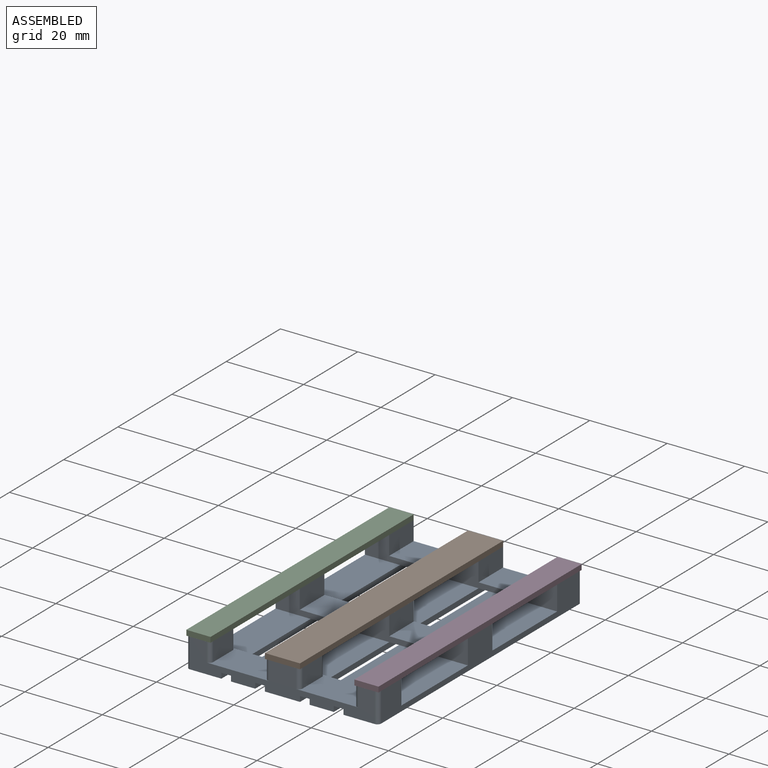
[diagram: assembled view]
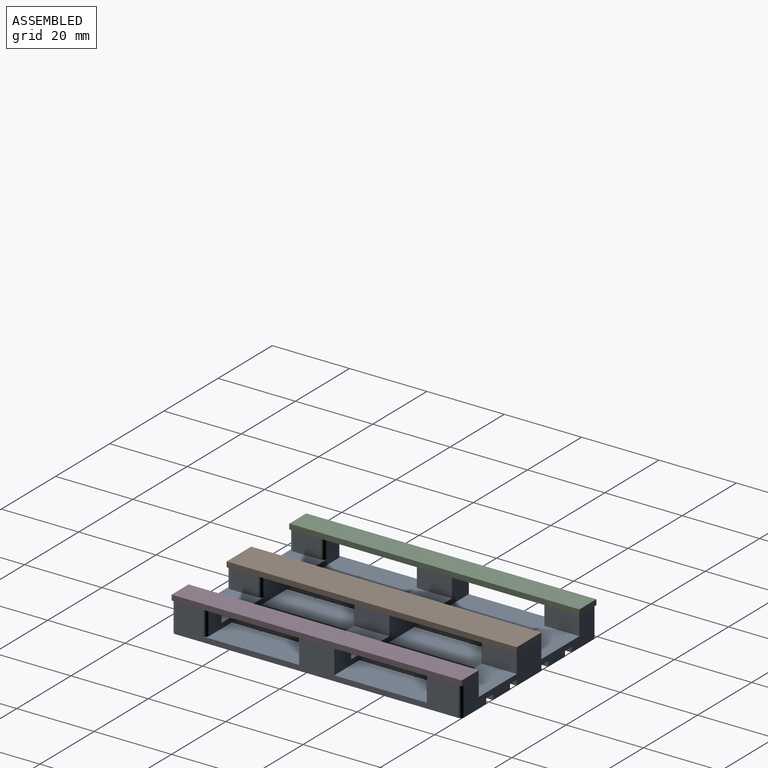
[diagram: assembled view, second angle]
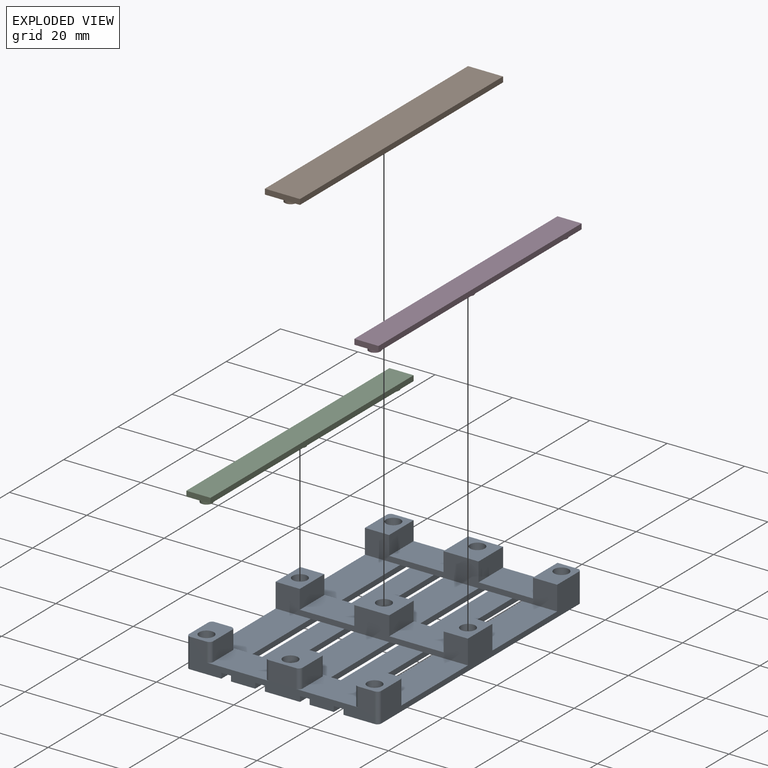
[diagram: exploded view]
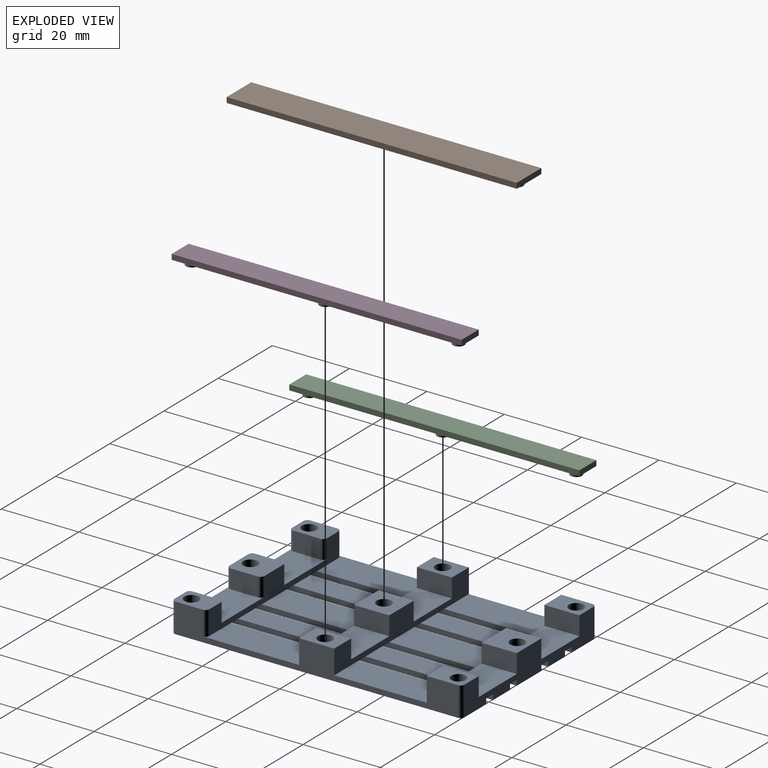
[diagram: exploded view, second angle]
ASSEMBLY  parts=4 mates=3
PART A: 117 faces, bbox 49.7x75x7.6 mm
  f0: plane 23.91x9.06mm, normal (0,0,1), area 216.6mm2, adj f3,f5,f45,f59
  f1: plane 23.91x9.06mm, normal (0,0,1), area 216.6mm2, adj f3,f5,f57,f70
  f2: plane 9.06x1.38mm, normal (0,-1,0), area 12.5mm2, adj f3,f5,f6,f72
  f3: plane 75x1.38mm, normal (1,0,0), area 103.1mm2, adj f0,f1,f2,f4,f6,f7,f8,f9
  f4: plane 47.69x7.63mm, normal (0,1,0), area 212.8mm2, adj f3,f5,f6,f7,f13,f14,f15,f16
  f5: plane 75x1.38mm, normal (-1,0,0), area 103.1mm2, adj f0,f1,f2,f4,f6,f16,f17,f18
  f6: plane 75x9.06mm, normal (0,0,-1), area 679.7mm2, adj f2,f3,f4,f5
  f7: plane 9.06x2.5mm, normal (0,0,-1), area 22.7mm2, adj f3,f4,f32,f45
  f8: plane 9.06x2.5mm, normal (0,0,-1), area 22.7mm2, adj f3,f32,f57,f59
  f9: plane 9.06x2.5mm, normal (0,0,-1), area 22.7mm2, adj f3,f32,f70,f72
  f10: plane 23.91x6.25mm, normal (0,0,1), area 149.4mm2, adj f13,f14,f45,f59
  f11: plane 23.91x6.25mm, normal (0,0,1), area 149.4mm2, adj f13,f14,f57,f70
  f12: plane 6.25x1.38mm, normal (0,-1,0), area 8.6mm2, adj f13,f14,f15,f72
  f13: plane 75x1.38mm, normal (1,0,0), area 103.1mm2, adj f4,f10,f11,f12,f15,f16,f17,f18
  f14: plane 75x1.38mm, normal (-1,0,0), area 103.1mm2, adj f4,f10,f11,f12,f15,f25,f26,f27
  f15: plane 75x6.25mm, normal (0,0,-1), area 468.7mm2, adj f4,f12,f13,f14
  f16: plane 9.06x2.5mm, normal (0,0,-1), area 22.7mm2, adj f4,f5,f13,f45
  f17: plane 9.06x2.5mm, normal (0,0,-1), area 22.7mm2, adj f5,f13,f57,f59
  f18: plane 9.06x2.5mm, normal (0,0,-1), area 22.7mm2, adj f5,f13,f70,f72
  f19: plane 23.91x9.06mm, normal (0,0,1), area 216.7mm2, adj f22,f23,f45,f59
  f20: plane 24.91x9.06mm, normal (0,0,1), area 216.9mm2, adj f22,f23,f57,f70,f111
  f21: plane 8.06x1.38mm, normal (0,-1,0), area 11.1mm2, adj f22,f24,f72,f102
  f22: plane 75x1.38mm, normal (1,0,0), area 103.1mm2, adj f4,f19,f20,f21,f24,f25,f26,f27
  f23: plane 73x1.38mm, normal (-1,0,0), area 100.4mm2, adj f19,f20,f24,f47,f60,f71,f102,f116
  f24: plane 75x9.06mm, normal (0,0,-1), area 679.3mm2, adj f4,f21,f22,f23,f102,f116
  f25: plane 9.06x2.5mm, normal (0,0,-1), area 22.7mm2, adj f4,f14,f22,f45
  f26: plane 9.06x2.5mm, normal (0,0,-1), area 22.7mm2, adj f14,f22,f57,f59
  f27: plane 9.06x2.5mm, normal (0,0,-1), area 22.7mm2, adj f14,f22,f70,f72
  f28: plane 23.91x6.25mm, normal (0,0,1), area 149.4mm2, adj f31,f32,f45,f59
  f29: plane 23.91x6.25mm, normal (0,0,1), area 149.4mm2, adj f31,f32,f57,f70
  f30: plane 6.25x1.38mm, normal (0,-1,0), area 8.6mm2, adj f31,f32,f33,f72
  f31: plane 75x1.38mm, normal (1,0,0), area 103.1mm2, adj f4,f28,f29,f30,f33,f34,f35,f36
  f32: plane 75x1.38mm, normal (-1,0,0), area 103.1mm2, adj f4,f7,f8,f9,f28,f29,f30,f33
  f33: plane 75x6.25mm, normal (0,0,-1), area 468.7mm2, adj f4,f30,f31,f32
  f34: plane 9.06x2.5mm, normal (0,0,-1), area 22.7mm2, adj f4,f31,f41,f45
  f35: plane 9.06x2.5mm, normal (0,0,-1), area 22.7mm2, adj f31,f41,f57,f59
  f36: plane 9.06x2.5mm, normal (0,0,-1), area 22.7mm2, adj f31,f41,f70,f72
  f37: plane 24.91x9.06mm, normal (0,0,1), area 216.9mm2, adj f40,f41,f57,f70,f112
  f38: plane 23.91x9.06mm, normal (0,0,1), area 216.7mm2, adj f40,f41,f45,f59
  f39: plane 8.06x1.38mm, normal (0,-1,0), area 11.1mm2, adj f41,f42,f72,f100
  f40: plane 73x1.38mm, normal (1,0,0), area 100.4mm2, adj f37,f38,f42,f46,f58,f73,f100,f114
  f41: plane 75x1.38mm, normal (-1,0,0), area 103.1mm2, adj f4,f34,f35,f36,f37,f38,f39,f42
  f42: plane 75x9.06mm, normal (0,0,-1), area 679.3mm2, adj f4,f39,f40,f41,f100,f114
  f43: plane 14.06x9.06mm, normal (0,0,1), area 127.4mm2, adj f4,f45,f50,f53
  f44: plane 14.06x9.06mm, normal (0,0,1), area 127.4mm2, adj f4,f45,f48,f52
  f45: plane 49.69x6.25mm, normal (0,-1,0), area 173.4mm2, adj f0,f7,f10,f16,f19,f25,f28,f34
  f46: plane 8.06x6.25mm, normal (1,0,0), area 50.4mm2, adj f40,f45,f51,f113
  f47: plane 8.06x6.25mm, normal (-1,0,0), area 50.4mm2, adj f23,f45,f49,f115
  f48: plane 9.06x4.88mm, normal (1,0,0), area 44.2mm2, adj f4,f44,f45,f49
  f49: plane 9.06x6.25mm, normal (0,0,1), area 45.1mm2, adj f4,f45,f47,f48,f97,f115
  f50: plane 9.06x4.88mm, normal (-1,0,0), area 44.2mm2, adj f4,f43,f45,f51
  f51: plane 9.06x6.25mm, normal (0,0,1), area 45.1mm2, adj f4,f45,f46,f50,f95,f113
  f52: plane 9.06x4.88mm, normal (-1,0,0), area 44.2mm2, adj f4,f44,f45,f54
  f53: plane 9.06x4.88mm, normal (1,0,0), area 44.2mm2, adj f4,f43,f45,f54
  f54: plane 9.06x9.06mm, normal (0,0,1), area 70.8mm2, adj f4,f45,f52,f53,f93
  f55: plane 14.06x9.06mm, normal (0,0,1), area 127.5mm2, adj f57,f59,f61,f66
  f56: plane 14.06x9.06mm, normal (0,0,1), area 127.5mm2, adj f57,f59,f63,f65
  f57: plane 49.69x6.25mm, normal (0,-1,0), area 173.4mm2, adj f1,f8,f11,f17,f20,f26,f29,f35
  f58: plane 9.06x6.25mm, normal (1,0,0), area 56.6mm2, adj f40,f57,f59,f64
  f59: plane 49.69x6.25mm, normal (0,1,0), area 173.4mm2, adj f0,f8,f10,f17,f19,f26,f28,f35
  f60: plane 9.06x6.25mm, normal (-1,0,0), area 56.6mm2, adj f23,f57,f59,f62
  f61: plane 9.06x4.88mm, normal (1,0,0), area 44.2mm2, adj f55,f57,f59,f62
  f62: plane 9.06x6.25mm, normal (0,0,1), area 45.3mm2, adj f57,f59,f60,f61,f91
  f63: plane 9.06x4.88mm, normal (-1,0,0), area 44.2mm2, adj f56,f57,f59,f64
  f64: plane 9.06x6.25mm, normal (0,0,1), area 45.3mm2, adj f57,f58,f59,f63,f89
  f65: plane 9.06x4.88mm, normal (1,0,0), area 44.2mm2, adj f56,f57,f59,f67
  f66: plane 9.06x4.88mm, normal (-1,0,0), area 44.2mm2, adj f55,f57,f59,f67
  f67: plane 9.06x9.06mm, normal (0,0,1), area 70.8mm2, adj f57,f59,f65,f66,f87
  f68: plane 16.06x9.06mm, normal (0,0,1), area 128.3mm2, adj f70,f72,f76,f79,f103,f104,f107,f108
  f69: plane 16.08x9.06mm, normal (0,0,1), area 128.5mm2, adj f70,f72,f74,f78,f105,f106,f109,f110
  f70: plane 47.69x6.25mm, normal (0,1,0), area 141.4mm2, adj f1,f9,f11,f18,f20,f27,f29,f36
  f71: plane 7.06x6.25mm, normal (-1,0,0), area 44.1mm2, adj f23,f75,f101,f111
  f72: plane 47.69x6.25mm, normal (0,-1,0), area 141.4mm2, adj f2,f9,f12,f18,f21,f27,f30,f36
  f73: plane 7.06x6.25mm, normal (1,0,0), area 44.1mm2, adj f40,f77,f99,f112
  f74: plane 7.06x4.88mm, normal (1,0,0), area 34.4mm2, adj f69,f75,f109,f110
  f75: plane 9.06x6.25mm, normal (0,0,1), area 44.4mm2, adj f70,f71,f72,f74,f85,f101,f109,f110
  f76: plane 7.06x4.88mm, normal (-1,0,0), area 34.4mm2, adj f68,f77,f103,f104
  f77: plane 9.06x6.25mm, normal (0,0,1), area 44.4mm2, adj f70,f72,f73,f76,f83,f99,f103,f104
  f78: plane 7.06x4.88mm, normal (-1,0,0), area 34.4mm2, adj f69,f80,f105,f106
  f79: plane 7.06x4.88mm, normal (1,0,0), area 34.4mm2, adj f68,f80,f107,f108
  f80: plane 9.06x9.04mm, normal (0,0,1), area 69.8mm2, adj f70,f72,f78,f79,f81,f105,f106,f107
  f81: cylinder r=1.9mm len=3.8mm, axis (0,0,1), area 23.9mm2, adj f80,f82
  f82: plane 3.8x3.8mm, normal (0,0,1), area 11.3mm2, adj f81
  f83: cylinder r=1.9mm len=3.8mm, axis (0,0,1), area 23.9mm2, adj f77,f84
  f84: plane 3.8x3.8mm, normal (0,0,1), area 11.3mm2, adj f83
  f85: cylinder r=1.9mm len=3.8mm, axis (0,0,1), area 23.9mm2, adj f75,f86
  f86: plane 3.8x3.8mm, normal (0,0,1), area 11.3mm2, adj f85
  f87: cylinder r=1.9mm len=3.8mm, axis (0,0,1), area 23.9mm2, adj f67,f88
  f88: plane 3.8x3.8mm, normal (0,0,1), area 11.3mm2, adj f87
  f89: cylinder r=1.9mm len=3.8mm, axis (0,0,1), area 23.9mm2, adj f64,f90
  f90: plane 3.8x3.8mm, normal (0,0,1), area 11.3mm2, adj f89
  f91: cylinder r=1.9mm len=3.8mm, axis (0,0,1), area 23.9mm2, adj f62,f92
  f92: plane 3.8x3.8mm, normal (0,0,1), area 11.3mm2, adj f91
  f93: cylinder r=1.9mm len=3.8mm, axis (0,0,1), area 23.9mm2, adj f54,f94
  f94: plane 3.8x3.8mm, normal (0,0,1), area 11.3mm2, adj f93
  f95: cylinder r=1.9mm len=3.8mm, axis (0,0,1), area 23.9mm2, adj f51,f96
  f96: plane 3.8x3.8mm, normal (0,0,1), area 11.3mm2, adj f95
  f97: cylinder r=1.9mm len=3.8mm, axis (0,0,1), area 23.9mm2, adj f49,f98
  f98: plane 3.8x3.8mm, normal (0,0,1), area 11.3mm2, adj f97
  f99: cylinder r=1mm len=6.25mm, axis (0,0,1), area 9.8mm2, adj f72,f73,f77,f100
  f100: cylinder r=1mm len=1.38mm, axis (0,0,1), area 2.2mm2, adj f39,f40,f42,f99
  f101: cylinder r=1mm len=6.25mm, axis (0,0,-1), area 9.8mm2, adj f71,f72,f75,f102
  f102: cylinder r=1mm len=1.38mm, axis (0,0,-1), area 2.2mm2, adj f21,f23,f24,f101
  f103: cylinder r=1mm len=4.88mm, axis (0,0,1), area 7.7mm2, adj f68,f72,f76,f77
  f104: cylinder r=1mm len=4.88mm, axis (0,0,-1), area 7.7mm2, adj f68,f70,f76,f77
  f105: cylinder r=1mm len=4.88mm, axis (0,0,-1), area 7.7mm2, adj f69,f70,f78,f80
  f106: cylinder r=1mm len=4.88mm, axis (0,0,1), area 7.7mm2, adj f69,f72,f78,f80
  f107: cylinder r=1mm len=4.88mm, axis (0,0,-1), area 7.7mm2, adj f68,f72,f79,f80
  f108: cylinder r=1mm len=4.88mm, axis (0,0,1), area 7.7mm2, adj f68,f70,f79,f80
  f109: cylinder r=1mm len=4.88mm, axis (0,0,-1), area 7.7mm2, adj f69,f72,f74,f75
  f110: cylinder r=1mm len=4.88mm, axis (0,0,1), area 7.7mm2, adj f69,f70,f74,f75
  f111: cylinder r=1mm len=6.25mm, axis (0,0,1), area 9.8mm2, adj f20,f70,f71,f75
  f112: cylinder r=1mm len=6.25mm, axis (0,0,-1), area 9.8mm2, adj f37,f70,f73,f77
  f113: cylinder r=1mm len=6.25mm, axis (0,0,-1), area 9.8mm2, adj f4,f46,f51,f114
  f114: cylinder r=1mm len=1.38mm, axis (0,0,-1), area 2.2mm2, adj f4,f40,f42,f113
  f115: cylinder r=1mm len=6.25mm, axis (0,0,1), area 9.8mm2, adj f4,f47,f49,f116
  f116: cylinder r=1mm len=1.38mm, axis (0,0,1), area 2.2mm2, adj f4,f23,f24,f115
PART B: 12 faces, bbox 9.1x75x2.9 mm
  f0: plane 9.06x1.38mm, normal (0,-1,0), area 12.5mm2, adj f1,f3,f4,f5
  f1: plane 75x1.38mm, normal (1,0,0), area 103.1mm2, adj f0,f2,f4,f5
  f2: plane 9.06x1.38mm, normal (0,1,0), area 12.5mm2, adj f1,f3,f4,f5
  f3: plane 75x1.38mm, normal (-1,0,0), area 103.1mm2, adj f0,f2,f4,f5
  f4: plane 75x9.06mm, normal (0,0,1), area 658.5mm2, adj f0,f1,f2,f3,f6,f8,f10
  f5: plane 75x9.06mm, normal (0,0,-1), area 679.7mm2, adj f0,f1,f2,f3
  f6: cylinder r=1.5mm len=3mm, axis (0,0,-1), area 14.1mm2, adj f4,f7
  f7: plane 3x3mm, normal (0,0,1), area 7.1mm2, adj f6
  f8: cylinder r=1.5mm len=3mm, axis (0,0,-1), area 14.1mm2, adj f4,f9
  f9: plane 3x3mm, normal (0,0,1), area 7.1mm2, adj f8
  f10: cylinder r=1.5mm len=3mm, axis (0,0,-1), area 14.1mm2, adj f4,f11
  f11: plane 3x3mm, normal (0,0,1), area 7.1mm2, adj f10
PART C: 12 faces, bbox 6.3x75x2.9 mm
  f0: plane 6.25x1.38mm, normal (0,-1,0), area 8.6mm2, adj f1,f3,f4,f5
  f1: plane 75x1.38mm, normal (1,0,0), area 103.1mm2, adj f0,f2,f4,f5
  f2: plane 6.25x1.38mm, normal (0,1,0), area 8.6mm2, adj f1,f3,f4,f5
  f3: plane 75x1.38mm, normal (-1,0,0), area 103.1mm2, adj f0,f2,f4,f5
  f4: plane 75x6.25mm, normal (0,0,1), area 447.5mm2, adj f0,f1,f2,f3,f6,f8,f10
  f5: plane 75x6.25mm, normal (0,0,-1), area 468.8mm2, adj f0,f1,f2,f3
  f6: cylinder r=1.5mm len=3mm, axis (0,0,-1), area 14.1mm2, adj f4,f7
  f7: plane 3x3mm, normal (0,0,1), area 7.1mm2, adj f6
  f8: cylinder r=1.5mm len=3mm, axis (0,0,-1), area 14.1mm2, adj f4,f9
  f9: plane 3x3mm, normal (0,0,1), area 7.1mm2, adj f8
  f10: cylinder r=1.5mm len=3mm, axis (0,0,-1), area 14.1mm2, adj f4,f11
  f11: plane 3x3mm, normal (0,0,1), area 7.1mm2, adj f10
PART D: same geometry as C
PLACE A rot(axis=(0,1,0),0deg) t=(-12.23,4.38,7.95)mm
PLACE B rot(axis=(0,-1,0),180deg) t=(-12.23,4.38,16.95)mm
PLACE C rot(axis=(0,-1,0),180deg) t=(-33.95,4.38,16.95)mm
PLACE D rot(axis=(0,1,0),180deg) t=(9.49,4.38,16.95)mm
MATE fastened A.f89 <-> D.f6  axis (0,0,1) through (9.49,4.38,15.58)mm
MATE fastened A.f87 <-> B.f6  axis (0,0,1) through (-12.23,4.38,15.58)mm
MATE fastened A.f91 <-> C.f6  axis (0,0,1) through (-33.95,4.38,15.58)mm
